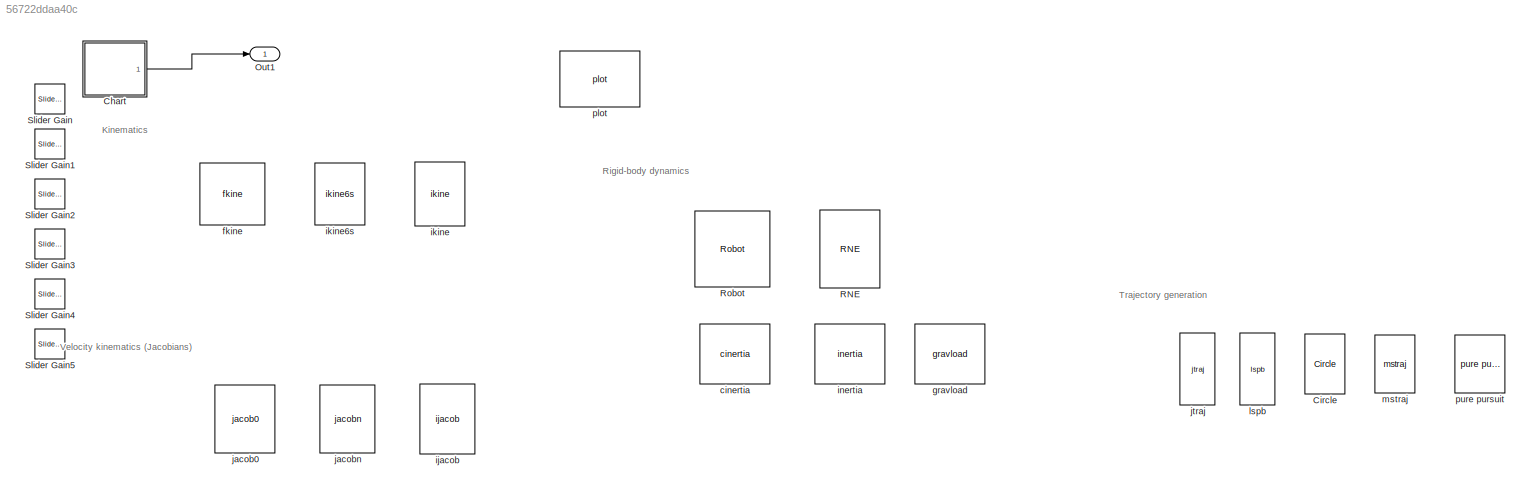
MODEL slx_56722ddaa40c
KIND model
CONFIG AbsTol = auto
CONFIG EnableMultiTasking = off
CONFIG FixedStep = auto
CONFIG MaxStep = auto
CONFIG MinStep = auto
CONFIG RelTol = 1e-3
CONFIG SampleTimeConstraint = Unconstrained
CONFIG SolverName = VariableStepAuto
CONFIG StartTime = 0.0
CONFIG StopTime = 76
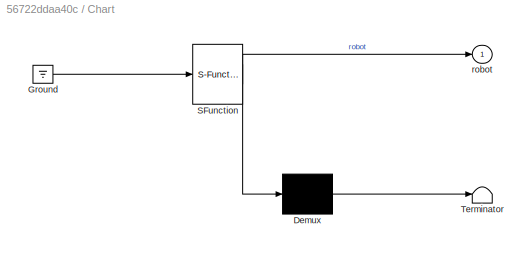
BLOCK [SubSystem] Chart
  ErrorFcn = Stateflow.Translate.translate
  PermitHierarchicalResolution = ExplicitOnly
  Ports = [0, 1]
  RequestExecContextInheritance = off
  SFBlockType = Chart
  TreatAsAtomicUnit = on
BLOCK [Demux] Chart/ Demux 
  Outputs = 1
  Ports = [1, 1]
BLOCK [Ground] Chart/ Ground 
BLOCK [S-Function] Chart/ SFunction 
  EnableBusSupport = off
  FunctionName = sf_sfun
  PortCounts = [1 2]
  Ports = [1, 2]
  SFcnIsStateOwnerBlock = off
  SFunctionDeploymentMode = off
  Tag = Stateflow S-Function 3
BLOCK [Terminator] Chart/ Terminator 
BLOCK [Outport] Chart/robot
BLOCK [Reference] Circle  REF=roblocks/Toolbox/Circle  (lib defined in mdl_2a292b13c81b, mdl_69400f8cfe22, +12 more)
  Ports = [0, 1]
  SourceBlock = roblocks/Toolbox/Circle
BLOCK [Outport] Out1
BLOCK [Reference] RNE  REF=roblocks/Arm/RNE  (lib defined in mdl_2a292b13c81b, mdl_69400f8cfe22, +12 more)
  Ports = [3, 1]
  SourceBlock = roblocks/Arm/RNE
BLOCK [Reference] Robot  REF=roblocks/Arm/Robot  (lib defined in mdl_2a292b13c81b, mdl_69400f8cfe22, +12 more)
  Ports = [1, 3]
  SourceBlock = roblocks/Arm/Robot
BLOCK [Reference] Slider Gain  REF=simulink/Math
Operations/Slider
Gain
  Ports = [1, 1]
  SourceBlock = simulink/Math\nOperations/Slider\nGain
  SourceProductBaseCode = SL
  SourceType = Slider Gain
BLOCK [Reference] Slider Gain1  REF=simulink/Math
Operations/Slider
Gain
  Ports = [1, 1]
  SourceBlock = simulink/Math\nOperations/Slider\nGain
  SourceProductBaseCode = SL
  SourceType = Slider Gain
BLOCK [Reference] Slider Gain2  REF=simulink/Math
Operations/Slider
Gain
  Ports = [1, 1]
  SourceBlock = simulink/Math\nOperations/Slider\nGain
  SourceProductBaseCode = SL
  SourceType = Slider Gain
BLOCK [Reference] Slider Gain3  REF=simulink/Math
Operations/Slider
Gain
  Ports = [1, 1]
  SourceBlock = simulink/Math\nOperations/Slider\nGain
  SourceProductBaseCode = SL
  SourceType = Slider Gain
BLOCK [Reference] Slider Gain4  REF=simulink/Math
Operations/Slider
Gain
  Ports = [1, 1]
  SourceBlock = simulink/Math\nOperations/Slider\nGain
  SourceProductBaseCode = SL
  SourceType = Slider Gain
BLOCK [Reference] Slider Gain5  REF=simulink/Math
Operations/Slider
Gain
  Ports = [1, 1]
  SourceBlock = simulink/Math\nOperations/Slider\nGain
  SourceProductBaseCode = SL
  SourceType = Slider Gain
BLOCK [Reference] cinertia  REF=roblocks/Arm/cinertia  (lib defined in mdl_2a292b13c81b, mdl_69400f8cfe22, +12 more)
  Ports = [1, 1]
  SourceBlock = roblocks/Arm/cinertia
BLOCK [Reference] fkine  REF=roblocks/Arm/fkine  (lib defined in mdl_2a292b13c81b, mdl_69400f8cfe22, +12 more)
  Ports = [1, 1]
  SourceBlock = roblocks/Arm/fkine
BLOCK [Reference] gravload  REF=roblocks/Arm/gravload  (lib defined in mdl_2a292b13c81b, mdl_69400f8cfe22, +12 more)
  Ports = [1, 1]
  SourceBlock = roblocks/Arm/gravload
BLOCK [Reference] ijacob  REF=roblocks/Arm/ijacob  (lib defined in mdl_2a292b13c81b, mdl_69400f8cfe22, +12 more)
  Ports = [1, 1]
  SourceBlock = roblocks/Arm/ijacob
BLOCK [Reference] ikine  REF=roblocks/Arm/ikine  (lib defined in mdl_2a292b13c81b, mdl_69400f8cfe22, +12 more)
  Ports = [1, 1]
  SourceBlock = roblocks/Arm/ikine
BLOCK [Reference] ikine6s  REF=roblocks/Arm/ikine6s  (lib defined in mdl_2a292b13c81b, mdl_69400f8cfe22, +12 more)
  Ports = [1, 1]
  SourceBlock = roblocks/Arm/ikine6s
BLOCK [Reference] inertia  REF=roblocks/Arm/inertia  (lib defined in mdl_2a292b13c81b, mdl_69400f8cfe22, +12 more)
  Ports = [1, 1]
  SourceBlock = roblocks/Arm/inertia
BLOCK [Reference] jacob0   REF=roblocks/Arm/jacob0  (lib defined in mdl_2a292b13c81b, mdl_69400f8cfe22, +12 more)

  Ports = [1, 1]
  SourceBlock = roblocks/Arm/jacob0
BLOCK [Reference] jacobn  REF=roblocks/Arm/jacobn  (lib defined in mdl_2a292b13c81b, mdl_69400f8cfe22, +12 more)
  Ports = [1, 1]
  SourceBlock = roblocks/Arm/jacobn
BLOCK [Reference] jtraj  REF=roblocks/Toolbox/jtraj  (lib defined in mdl_2a292b13c81b, mdl_69400f8cfe22, +12 more)
  Ports = [0, 3]
  SourceBlock = roblocks/Toolbox/jtraj
BLOCK [Reference] lspb  REF=roblocks/Toolbox/lspb  (lib defined in mdl_2a292b13c81b, mdl_69400f8cfe22, +12 more)
  Ports = [0, 3]
  SourceBlock = roblocks/Toolbox/lspb
BLOCK [Reference] mstraj  REF=roblocks/Toolbox/mstraj  (lib defined in mdl_2a292b13c81b, mdl_69400f8cfe22, +12 more)
  Ports = [0, 1]
  SourceBlock = roblocks/Toolbox/mstraj
  SourceType = Trajectory generator
BLOCK [Reference] plot  REF=roblocks/Arm/plot  (lib defined in mdl_2a292b13c81b, mdl_69400f8cfe22, +12 more)
  Ports = [1]
  SourceBlock = roblocks/Arm/plot
BLOCK [Reference] pure pursuit  REF=roblocks/Toolbox/pure pursuit  (lib defined in mdl_2a292b13c81b, mdl_69400f8cfe22, +12 more)
  Ports = [1, 1]
  SourceBlock = roblocks/Toolbox/pure pursuit
  SourceType = Trajectory generator
ANNOTATION (root): Rigid-body dynamics
ANNOTATION (root): Velocity kinematics (Jacobians)
ANNOTATION (root): Trajectory generation
ANNOTATION (root): Kinematics
LINE Chart:1 -> Out1:1
CHART Chart states=1 transitions=0
  STATE_LABEL 'tecoarm = robot_arm_init'
  STATE_LABEL "SCRIPT:\nfunction tecoarm = robot_arm_init()\n%%%%%%%%%%%%%%%%%%%%%%%%\n%% 建立機器人模型\n        % theta    d        a        alpha     offset\n        %L1 = Link([0 0.2 1 pi/4 0],'standard'); %標準模式 L1 = Link([0 0.2 1\n        %pi/4 0],'modify'); %改進模式\n% mass = [3.7000, 8.3930, 2.33, 1.2190, 1.2190, 0.1897];\n\n% center_of_mass = [\n%         0,-0.02561, 0.00193\n%         0.2125, 0, 0.11336\n%         0.15, 0, 0...<+610ch>"
CHART  states=0 transitions=0
